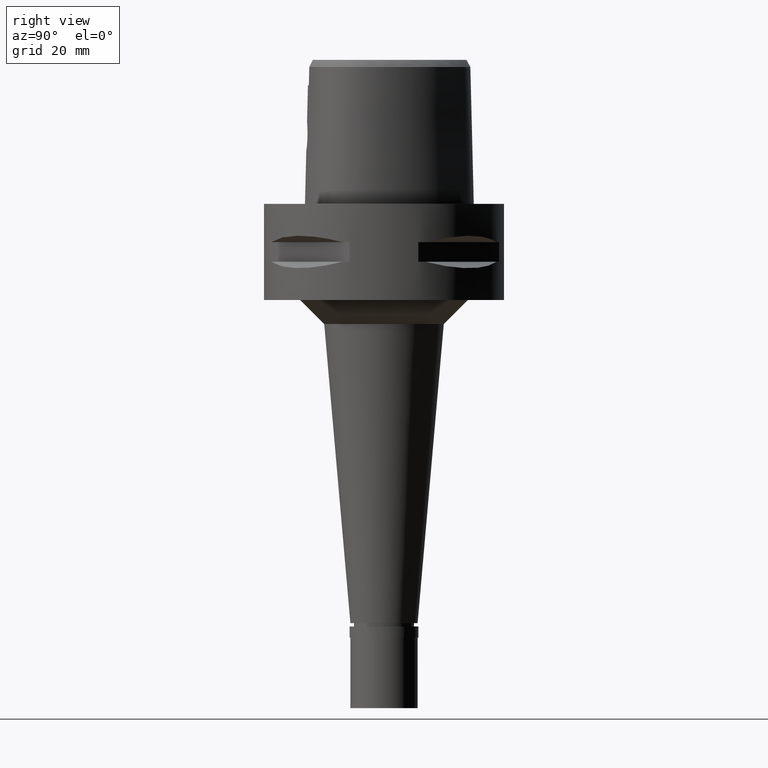
[diagram: clean part render]
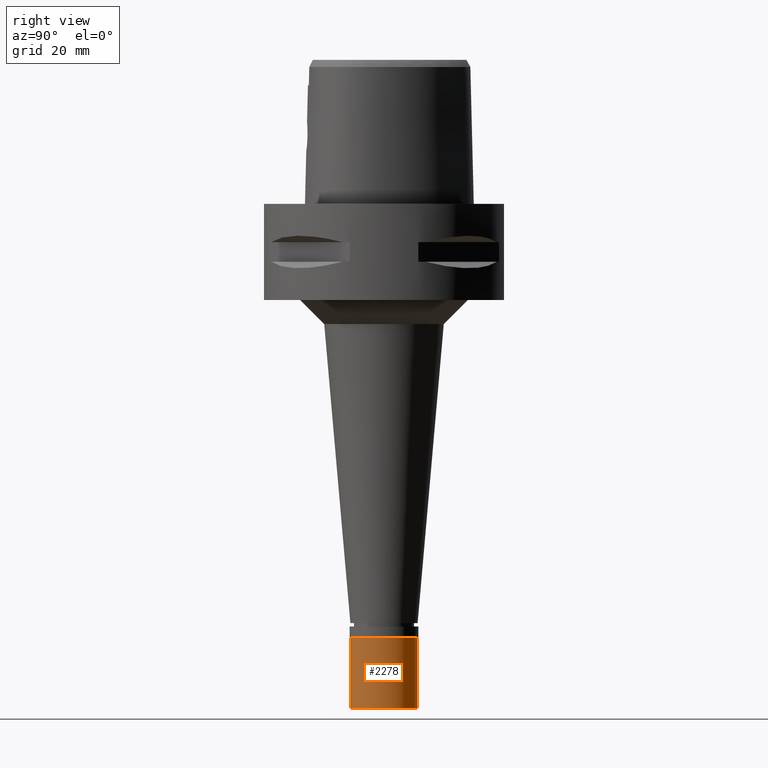
[diagram: same view with one face highlighted and labeled with its STEP entity id]
A machine part, right view. The second image highlights one B-rep face of the part: STEP entity #2278.
In plain terms, the highlighted cylindrical surface (edge-blend (fillet) strip) has radius 7 mm, axis along (0, 0, 1).
Its self-contained STEP definition (entity closure, byte-faithful):
#98 = CARTESIAN_POINT ( 'NONE',  ( 0.0000000000000000000, -7.000000000000000000, -17.00000000000000000 ) ) ;
#113 = AXIS2_PLACEMENT_3D ( 'NONE', #1054, #4786, #3649 ) ;
#166 = CARTESIAN_POINT ( 'NONE',  ( 0.0000000000000000000, -7.000000000000000000, -2.299999999999999822 ) ) ;
#243 = ORIENTED_EDGE ( 'NONE', *, *, #1575, .T. ) ;
#247 = EDGE_LOOP ( 'NONE', ( #4474, #243, #4041, #2958 ) ) ;
#274 = CARTESIAN_POINT ( 'NONE',  ( 0.0000000000000000000, -7.000000000000000000, -2.299999999999999822 ) ) ;
#377 = CIRCLE ( 'NONE', #4324, 7.000000000000000000 ) ;
#492 = DIRECTION ( 'NONE',  ( 0.0000000000000000000, 0.0000000000000000000, -1.000000000000000000 ) ) ;
#580 = CARTESIAN_POINT ( 'NONE',  ( 0.0000000000000000000, 7.000000000000000000, -2.299999999999999822 ) ) ;
#795 = VERTEX_POINT ( 'NONE', #98 ) ;
#847 = EDGE_CURVE ( 'NONE', #2006, #2936, #2193, .T. ) ;
#1054 = CARTESIAN_POINT ( 'NONE',  ( 0.0000000000000000000, 0.0000000000000000000, -2.299999999999999822 ) ) ;
#1449 = DIRECTION ( 'NONE',  ( 0.0000000000000000000, -1.000000000000000000, 0.0000000000000000000 ) ) ;
#1575 = EDGE_CURVE ( 'NONE', #2936, #795, #4264, .T. ) ;
#1790 = VERTEX_POINT ( 'NONE', #2920 ) ;
#1880 = CYLINDRICAL_SURFACE ( 'NONE', #3608, 7.000000000000000000 ) ;
#1982 = DIRECTION ( 'NONE',  ( 0.0000000000000000000, 0.0000000000000000000, -1.000000000000000000 ) ) ;
#2006 = VERTEX_POINT ( 'NONE', #2382 ) ;
#2193 = CIRCLE ( 'NONE', #113, 7.000000000000000000 ) ;
#2278 = ADVANCED_FACE ( 'NONE', ( #4744 ), #1880, .T. ) ;
#2382 = CARTESIAN_POINT ( 'NONE',  ( 0.0000000000000000000, 7.000000000000000000, -2.299999999999999822 ) ) ;
#2501 = DIRECTION ( 'NONE',  ( 0.0000000000000000000, 0.0000000000000000000, 1.000000000000000000 ) ) ;
#2568 = DIRECTION ( 'NONE',  ( 0.0000000000000000000, 0.0000000000000000000, 1.000000000000000000 ) ) ;
#2920 = CARTESIAN_POINT ( 'NONE',  ( 0.0000000000000000000, 7.000000000000000000, -17.00000000000000000 ) ) ;
#2936 = VERTEX_POINT ( 'NONE', #274 ) ;
#2940 = DIRECTION ( 'NONE',  ( 0.0000000000000000000, 1.000000000000000000, 0.0000000000000000000 ) ) ;
#2958 = ORIENTED_EDGE ( 'NONE', *, *, #3054, .F. ) ;
#3054 = EDGE_CURVE ( 'NONE', #2006, #1790, #3459, .T. ) ;
#3208 = VECTOR ( 'NONE', #492, 1000.000000000000000 ) ;
#3380 = VECTOR ( 'NONE', #1982, 1000.000000000000000 ) ;
#3459 = LINE ( 'NONE', #580, #3380 ) ;
#3608 = AXIS2_PLACEMENT_3D ( 'NONE', #3630, #2568, #2940 ) ;
#3630 = CARTESIAN_POINT ( 'NONE',  ( 0.0000000000000000000, 0.0000000000000000000, -17.85000000000000142 ) ) ;
#3649 = DIRECTION ( 'NONE',  ( 0.0000000000000000000, 1.000000000000000000, 0.0000000000000000000 ) ) ;
#4041 = ORIENTED_EDGE ( 'NONE', *, *, #4233, .T. ) ;
#4233 = EDGE_CURVE ( 'NONE', #795, #1790, #377, .T. ) ;
#4264 = LINE ( 'NONE', #166, #3208 ) ;
#4324 = AXIS2_PLACEMENT_3D ( 'NONE', #4764, #2501, #1449 ) ;
#4474 = ORIENTED_EDGE ( 'NONE', *, *, #847, .T. ) ;
#4744 = FACE_OUTER_BOUND ( 'NONE', #247, .T. ) ;
#4764 = CARTESIAN_POINT ( 'NONE',  ( 0.0000000000000000000, 0.0000000000000000000, -17.00000000000000000 ) ) ;
#4786 = DIRECTION ( 'NONE',  ( 0.0000000000000000000, 0.0000000000000000000, -1.000000000000000000 ) ) ;